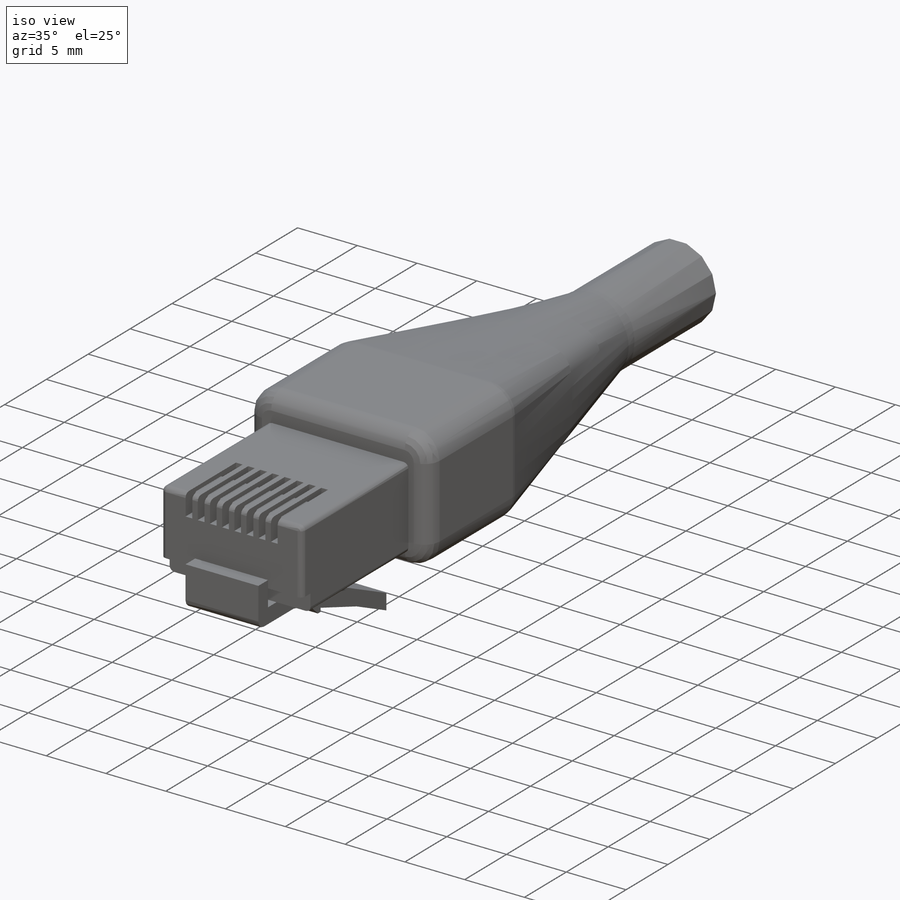
[diagram: iso view]
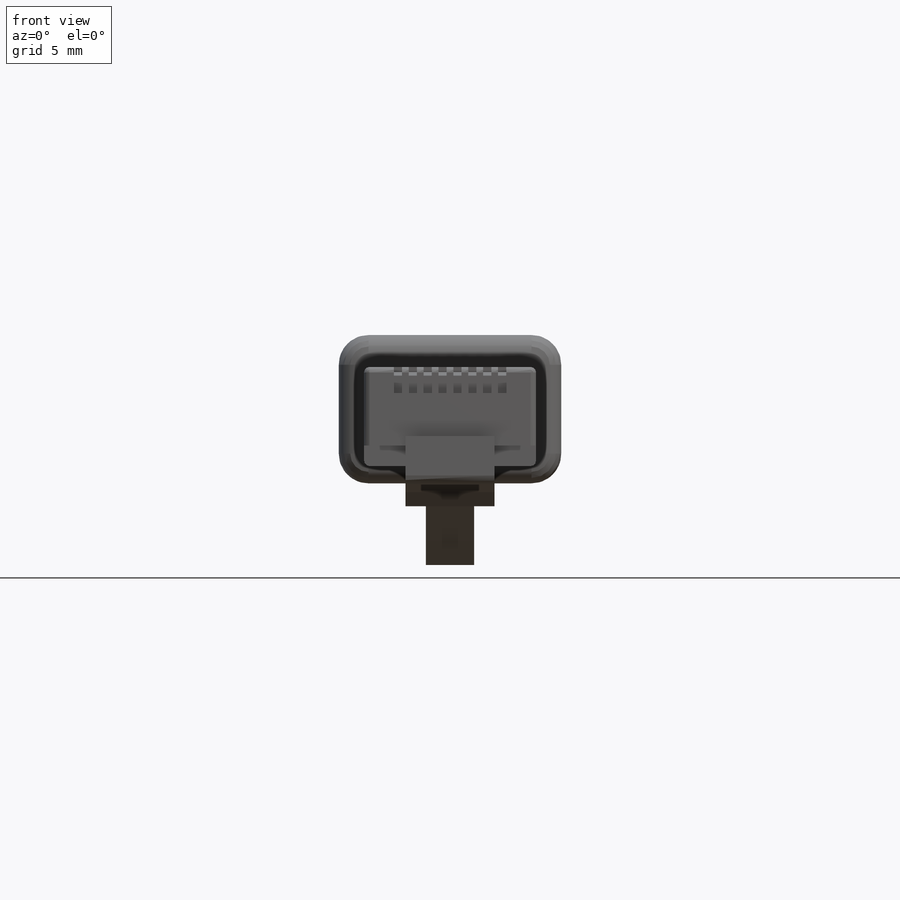
[diagram: front view]
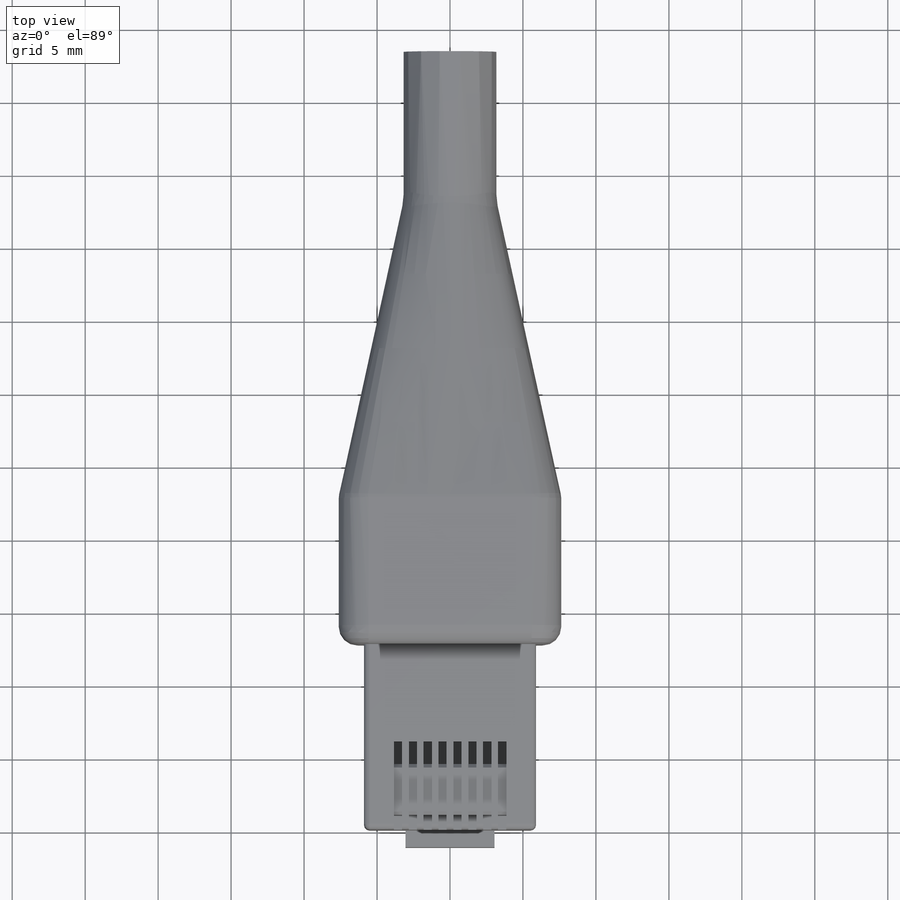
[diagram: top view]
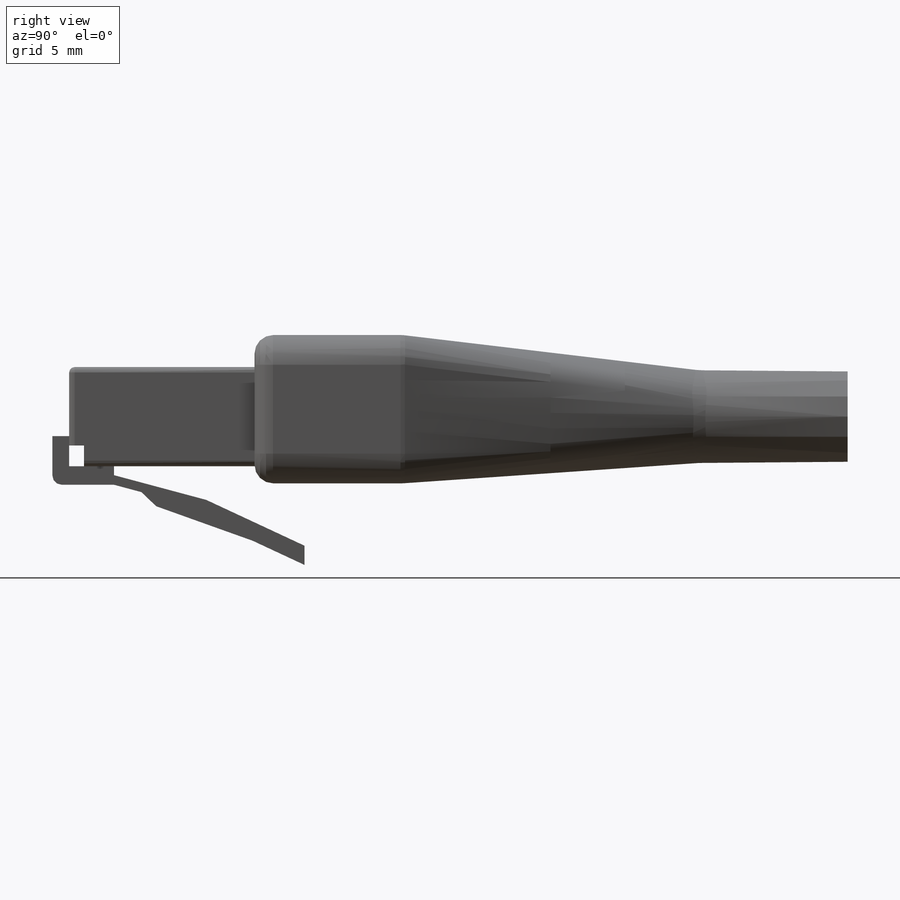
[diagram: right view]
SOLIDWORKS PART (.sldprt)
format: sldprt  version: not decoded by parser v0  size: 723,456 bytes
history: native  units: mm
features: sketch x11, extrude x7, fillet x4, plane x3, cut_extrude x3, pattern_linear x2, material x1 (+14 scaffold rows collapsed)
feature tree (45):
  scaffold x14  (default folders/planes/origin — collapsed)
  material  "Nylon 6/10"
  plane  "Plane1"  Offset=3.292602mm
  sketch  "Sketch1"  dims[D1=21.209mm D2=11.7856mm D3=6.9mm]
  extrude  "Extrude1"  Depth=6.79994mm
  sketch  "Sketch11"  dims[D1=8.0772mm D2=1.27mm]
  extrude  "Extrude5"  [1 undecoded]
  sketch  "Sketch2"  dims[c1.D1=0.635mm c1.D2=1.27mm c1.D3=1.15mm c1.D4=2.06mm c1.D5=~2.743228mm c1.D6=~6.281804mm c1.D7=~1.473217mm c1.D8=0.6126mm c1.D9=3.07mm c1.D10=~1.773657mm c1.D11=~0.316204mm c2.D5=~4.873217mm c2.D7=4.0126mm c2.D10=~6.143228mm c2.D12=~6.281804mm c2.D13=~5.173657mm c3.D5=~4.873217mm c3.D7=~6.143228mm c3.D10=~5.173644mm]
  extrude  "Extrude2"  Depth=6.096mm
  sketch  "Sketch3"  dims[c1.D1=~5.446899mm c1.D2=16.129mm c1.D3=5.9656mm c1.D4=~1.388473mm c1.D5=~1.354727mm c1.D6=~2.308182mm c1.D7=~5.105921mm c1.D8=9.398mm c1.D9=12.573mm c2.D1=5.9656mm c2.D2=12.573mm c2.D3=16.129mm c2.D4=~8.846899mm c2.D6=~5.708182mm c2.D7=~1.317213mm c2.D8=~8.505921mm c2.D9=~4.788473mm]
  extrude  "Extrude3"  Depth=3.302mm
  sketch  "Sketch5"  dims[D1=1.4224mm D2=1.016mm]
  cut_extrude  "Cut-Extrude1"  [1 undecoded]
  sketch  "Sketch13"  dims[D1=1.778mm D2=2.54mm D3=9.144mm]
  cut_extrude  "Cut-Extrude3"  Depth=20.32mm
  fillet  "Fillet2"  Radius=0.762mm
  fillet  "Fillet1"  Radius=0.381mm
  sketch  "Sketch7"  dims[D1=6.0198mm D2=1.778mm]
  cut_extrude  "Cut-Extrude2"  Depth=0.5588mm
  sketch  "Sketch4"  dims[D1=3.48mm D2=3.0mm D3=0.54mm D4=0.24mm D5=1.0032mm D6=3.048mm]
  extrude  "contact"  Depth=0.5588mm
  pattern_linear  "LPattern1"  Count1=8 Count2=1 Spacing1=1.020064mm Spacing2=50mm
  pattern_linear  "LPattern2"  Count1=8 Count2=1 Spacing1=1.020064mm Spacing2=50mm
  plane  "Plane2"  Offset=12.7mm
  plane  "Plane3"  Offset=30.48mm
  sketch  "Sketch14"  dims[D1=2.032mm D2=15.24mm D3=10.16mm D4=5.588mm]
  sketch  "Sketch15"  dims[D1=6.35mm]
  extrude  "Extrude6"  Depth=10.16mm
  sketch  "Sketch16"
  extrude  "Extrude7"  Depth=10.16mm
  fillet  "Fillet3"  Radius=1.27mm
  fillet  "Fillet4"  Radius=3.81mm
decode coverage: 24 of 27 modeling features carry decoded parameters
note: ~ marks probable driven/reference dimensions
note: 2 parameter values undecoded
note: suppression state not decoded; provenance and decode notes live in map.json
